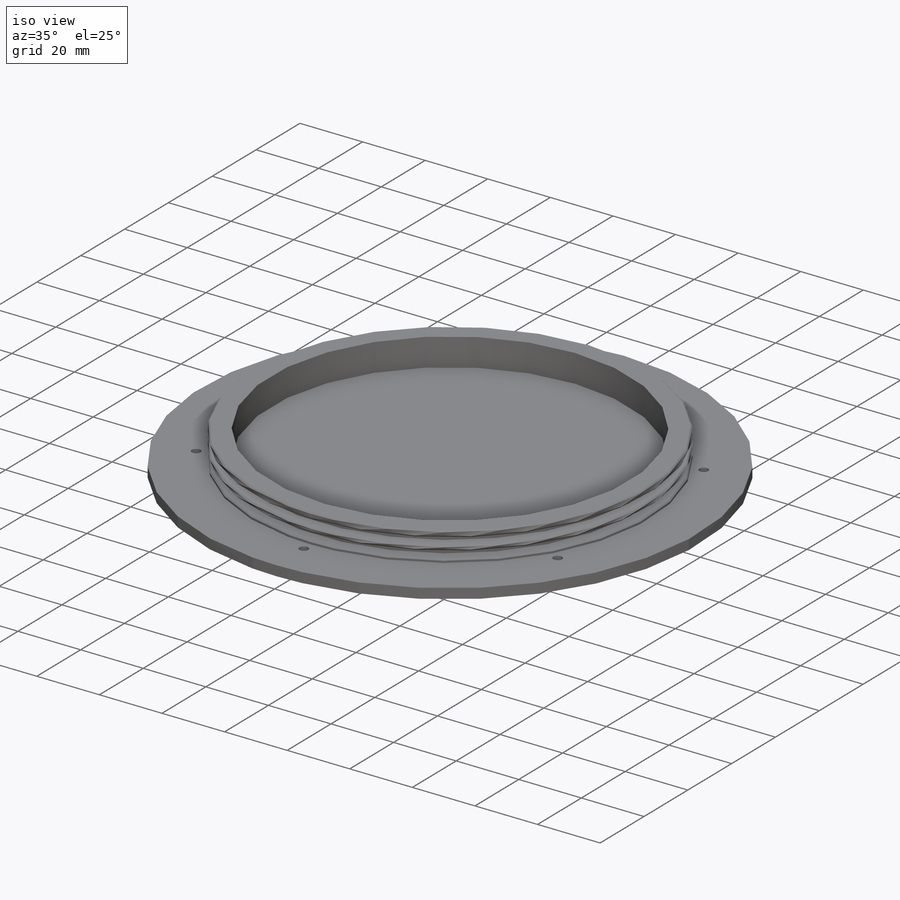
[diagram: iso view]
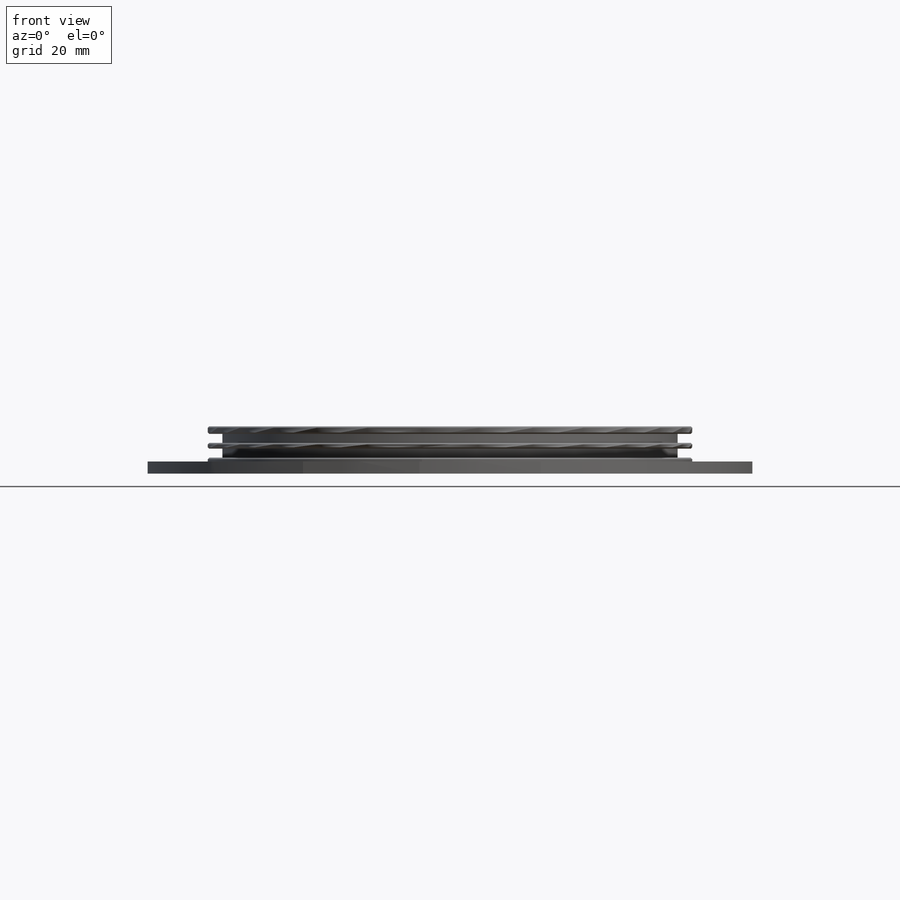
[diagram: front view]
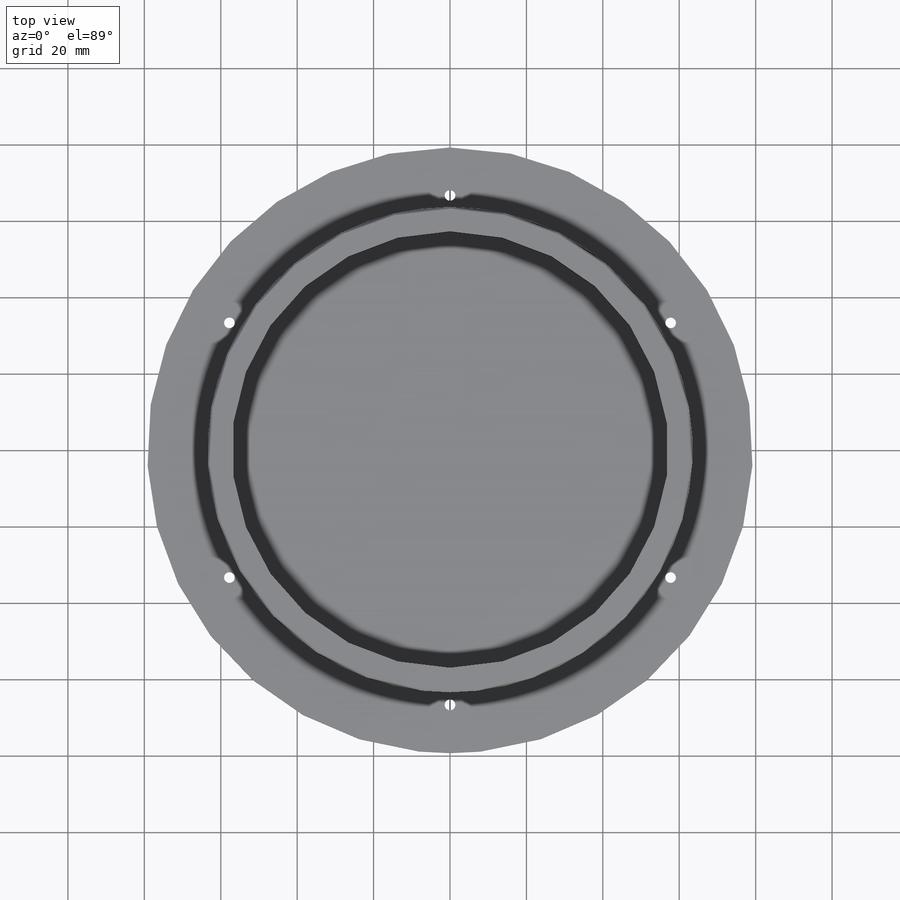
[diagram: top view]
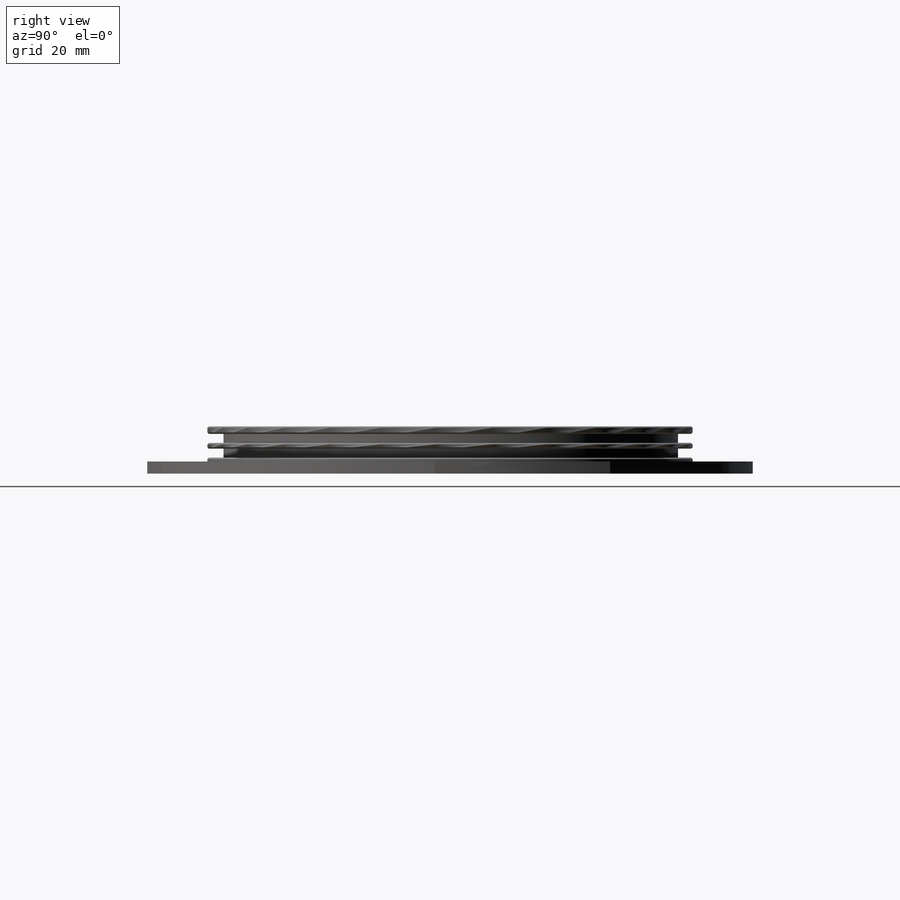
[diagram: right view]
SOLIDWORKS PART (.sldprt)
format: sldprt  version: not decoded by parser v0  size: 238,080 bytes
history: native  units: mm
features: sketch x8, extrude x2, chamfer x2, material x1, cut_revolve x1, cut_extrude x1, hole x1, pattern_circular x1 (+11 scaffold rows collapsed)
feature tree (28):
  scaffold x11  (default folders/planes/origin — collapsed)
  material  "Glass"
  sketch  "Sketch1"  dims[D1=158.496mm]
  extrude  "Extrude1"  Depth=3.175mm
  sketch  "Sketch2"  dims[D1=31.75mm]
  extrude  "Extrude2"  Depth=9.2075mm
  sketch  "Sketch4"  dims[c1.D1=2.3622mm c1.D2=2.3622mm c1.D3=1.5875mm c1.D4=1.5875mm c2.D3=59.69mm]
  cut_revolve  "Cut-Revolve7"  Angle=360deg
  sketch  "Sketch6"  dims[D1=30.0deg]
  chamfer  "Chamfer1"  Distance=0.381mm Angle=45deg
  sketch  "Sketch7"
  sketch  "Sketch8"  dims[D1=114.3mm]
  cut_extrude  "Cut-Extrude1"  Depth=8.89mm
  chamfer  "Axis2"  [1 undecoded]
  hole  "CBORE for #3 Socket Head Cap Screw1"  Diameter=2.794mm Depth=12.3825mm
  sketch  "3DSketch1"  dims[c1.D1=~40.406885mm c1.D2=34.29mm c2.D2=~40.327199mm c2.D6=34.29mm c2.D3=~40.376805mm c3.D2=34.29mm c3.D4=40.386mm c3.D1=34.29mm c3.D5=~40.45436mm c4.D1=34.29mm c4.D6=~40.420108mm c4.D8=34.29mm c4.D7=~67.078722mm c5.D6=68.2625mm c5.D1=~34.393017mm c5.D13=66.675mm c5.D2=~34.214131mm c6.D13=66.675mm c6.D3=~34.818607mm c6.D2=66.675mm c6.D4=~33.969508mm c7.D2=66.675mm c7.D5=~34.615736mm c7.D6=~34.13125mm c8.D6=~33.20504mm c8.D9=~33.20504mm c8.D8=~34.566824mm c8.D5=~34.13125mm c9.D6=~34.523907mm c9.D9=~34.082989mm c9.D5=~34.105849mm c9.D2=66.675mm c10.D6=~34.082989mm c10.D2=66.675mm c10.D7=~34.155372mm c10.D1=66.675mm c10.D8=0.0mm c11.D8=~34.134472mm c11.D1=66.675mm c11.D9=~34.134472mm c11.D2=66.675mm c11.D10=~34.155372mm c12.D2=66.675mm c12.D11=~34.13125mm c13.D2=66.675mm c13.D12=~34.13125mm c14.D2=66.675mm c14.D1=66.675mm]
  sketch  "Sketch5"  dims[hole-wizard template sketch: 41 standard entries collapsed; hole parameters kept: c12.Thru Hole Dia.=2.794mm c12.Thru Hole Depth=12.3825mm c12.C'Bore Dia.=~5.15874mm c12.C'Bore Depth=2.5146mm]
  pattern_circular  "CirPattern1"  Count=6 Angle=60deg
decode coverage: 14 of 16 modeling features carry decoded parameters
note: ~ marks probable driven/reference dimensions
note: 1 parameter value undecoded
note: suppression state not decoded; provenance and decode notes live in map.json
